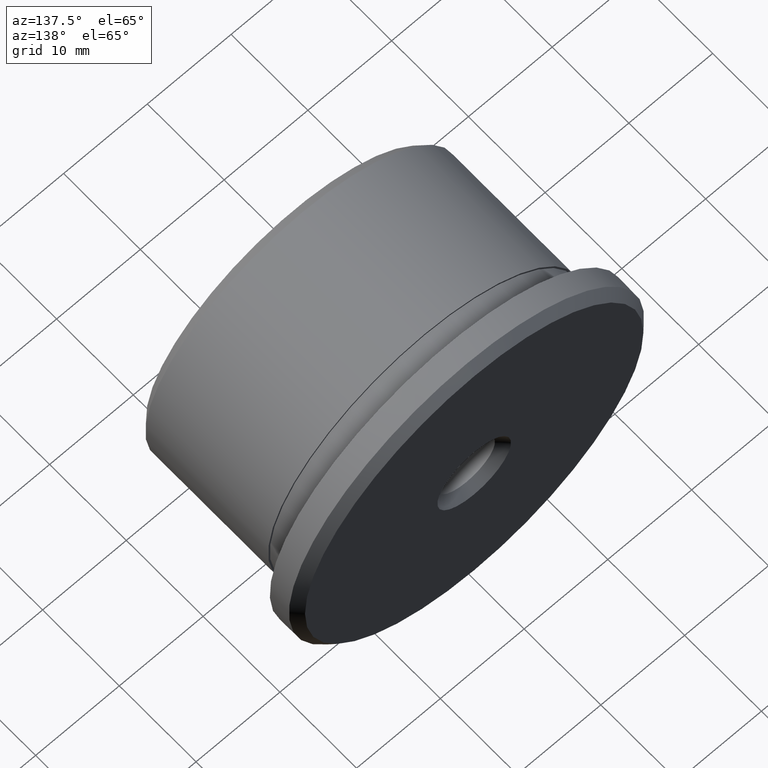
[diagram: clean part render]
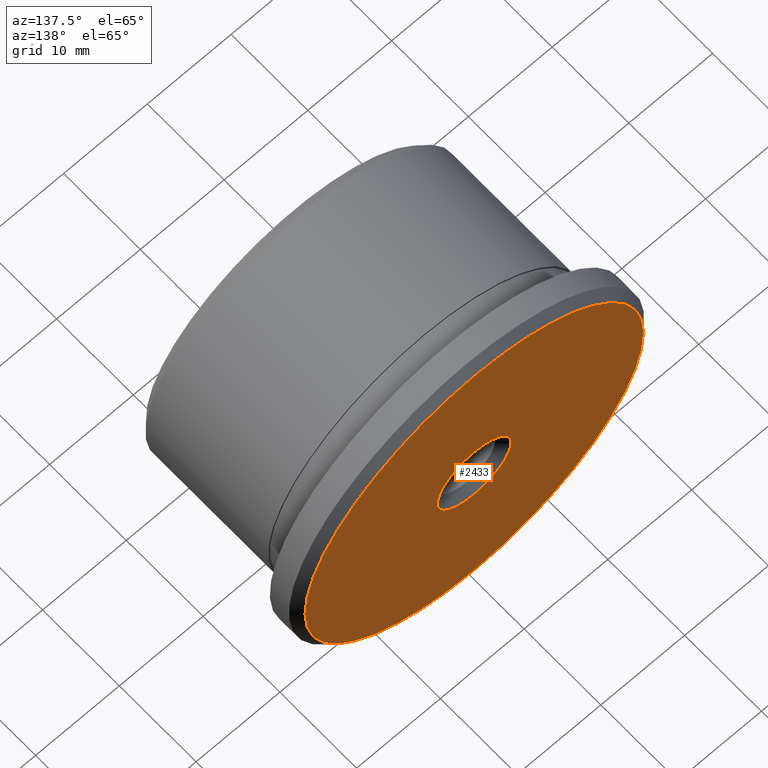
[diagram: same view with one face highlighted and labeled with its STEP entity id]
A machine part, auxiliary view. The second image highlights one B-rep face of the part: STEP entity #2433.
In plain terms, the highlighted planar face has unit normal (0, 1, 0).
Its self-contained STEP definition (entity closure, byte-faithful):
#324 = DIRECTION ( 'NONE',  ( -0.0000000000000000000, -1.000000000000000000, -0.0000000000000000000 ) ) ;
#782 = CARTESIAN_POINT ( 'NONE',  ( 0.0000000000000000000, 23.50000000000000000, 4.400000000000001200 ) ) ;
#1620 = DIRECTION ( 'NONE',  ( 0.0000000000000000000, -0.0000000000000000000, 1.000000000000000000 ) ) ;
#2433 = ADVANCED_FACE ( 'NONE', ( #5107, #11188 ), #15162, .T. ) ;
#2989 = CARTESIAN_POINT ( 'NONE',  ( 0.0000000000000000000, 23.50000000000000000, 0.0000000000000000000 ) ) ;
#3140 = CARTESIAN_POINT ( 'NONE',  ( 0.0000000000000000000, 23.50000000000000000, 0.0000000000000000000 ) ) ;
#3807 = EDGE_LOOP ( 'NONE', ( #11535 ) ) ;
#4559 = DIRECTION ( 'NONE',  ( 0.0000000000000000000, 0.0000000000000000000, 1.000000000000000000 ) ) ;
#5107 = FACE_BOUND ( 'NONE', #5412, .T. ) ;
#5174 = EDGE_CURVE ( 'NONE', #14705, #14705, #15938, .T. ) ;
#5412 = EDGE_LOOP ( 'NONE', ( #8050 ) ) ;
#5498 = AXIS2_PLACEMENT_3D ( 'NONE', #2989, #9110, #1620 ) ;
#6362 = CIRCLE ( 'NONE', #15781, 4.400000000000001200 ) ;
#6674 = EDGE_CURVE ( 'NONE', #18891, #18891, #6362, .T. ) ;
#7452 = CARTESIAN_POINT ( 'NONE',  ( 0.0000000000000000000, 23.50000000000000000, 20.19999999999999600 ) ) ;
#8050 = ORIENTED_EDGE ( 'NONE', *, *, #6674, .T. ) ;
#8344 = DIRECTION ( 'NONE',  ( 0.0000000000000000000, 0.0000000000000000000, 1.000000000000000000 ) ) ;
#9110 = DIRECTION ( 'NONE',  ( 0.0000000000000000000, 1.000000000000000000, 0.0000000000000000000 ) ) ;
#11188 = FACE_OUTER_BOUND ( 'NONE', #3807, .T. ) ;
#11535 = ORIENTED_EDGE ( 'NONE', *, *, #5174, .T. ) ;
#14644 = AXIS2_PLACEMENT_3D ( 'NONE', #15777, #17281, #8344 ) ;
#14705 = VERTEX_POINT ( 'NONE', #7452 ) ;
#15162 = PLANE ( 'NONE',  #5498 ) ;
#15777 = CARTESIAN_POINT ( 'NONE',  ( 0.0000000000000000000, 23.50000000000000000, 0.0000000000000000000 ) ) ;
#15781 = AXIS2_PLACEMENT_3D ( 'NONE', #3140, #324, #4559 ) ;
#15938 = CIRCLE ( 'NONE', #14644, 20.19999999999999600 ) ;
#17281 = DIRECTION ( 'NONE',  ( 0.0000000000000000000, 1.000000000000000000, 0.0000000000000000000 ) ) ;
#18891 = VERTEX_POINT ( 'NONE', #782 ) ;